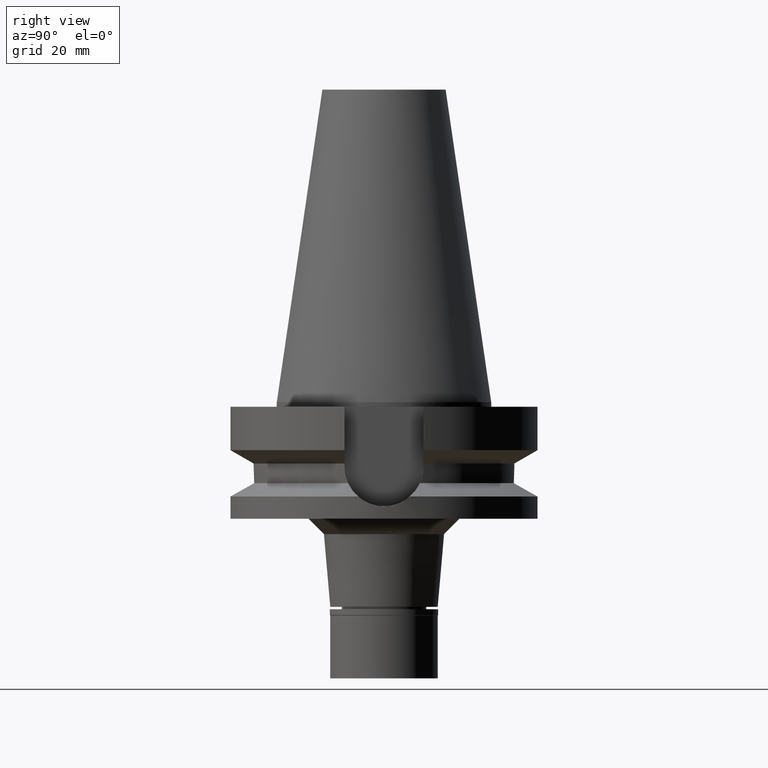
[diagram: clean part render]
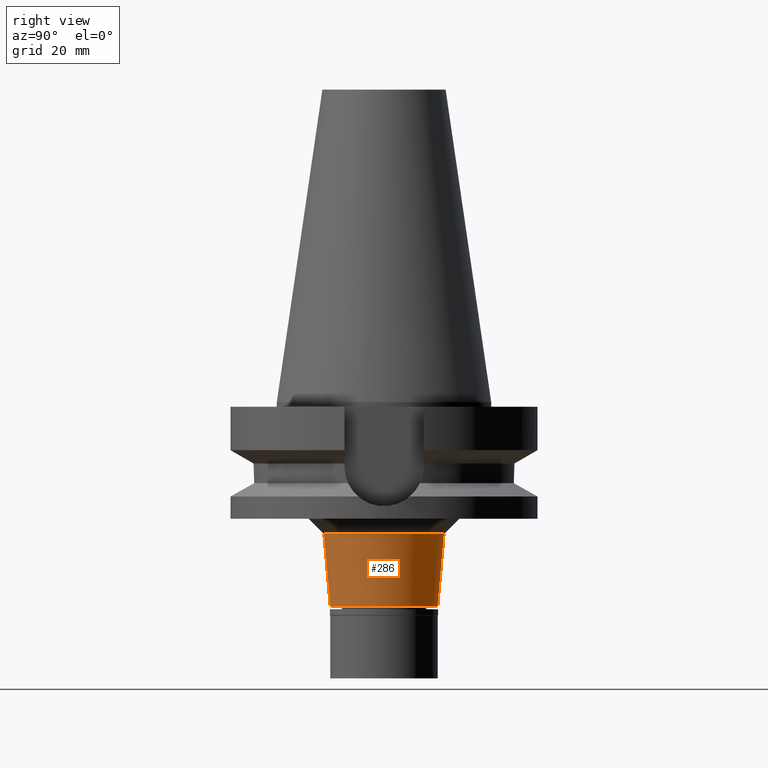
[diagram: same view with one face highlighted and labeled with its STEP entity id]
A machine part, right view. The second image highlights one B-rep face of the part: STEP entity #286.
In plain terms, the highlighted conical surface has half-angle 5 deg.
Its self-contained STEP definition (entity closure, byte-faithful):
#154 = AXIS2_PLACEMENT_3D ( 'NONE', #535, #2462, #1500 ) ;
#162 = AXIS2_PLACEMENT_3D ( 'NONE', #584, #1286, #1044 ) ;
#286 = ADVANCED_FACE ( 'NONE', ( #751 ), #1344, .T. ) ;
#309 = CIRCLE ( 'NONE', #162, 17.50000000000000000 ) ;
#364 = ORIENTED_EDGE ( 'NONE', *, *, #3040, .T. ) ;
#387 = CARTESIAN_POINT ( 'NONE',  ( 0.0000000000000000000, 19.57348132555999953, -43.00000000000000000 ) ) ;
#482 = LINE ( 'NONE', #1621, #2542 ) ;
#498 = DIRECTION ( 'NONE',  ( 0.0000000000000000000, 0.08715574274757587059, -0.9961946980917526506 ) ) ;
#515 = EDGE_CURVE ( 'NONE', #2129, #2021, #2766, .T. ) ;
#535 = CARTESIAN_POINT ( 'NONE',  ( 0.0000000000000000000, 0.0000000000000000000, -54.85000000000000142 ) ) ;
#584 = CARTESIAN_POINT ( 'NONE',  ( 0.0000000000000000000, 0.0000000000000000000, -66.69999999999998863 ) ) ;
#751 = FACE_OUTER_BOUND ( 'NONE', #2822, .T. ) ;
#771 = CARTESIAN_POINT ( 'NONE',  ( 0.0000000000000000000, 19.57348132555999953, -43.00000000000000000 ) ) ;
#1035 = CARTESIAN_POINT ( 'NONE',  ( 0.0000000000000000000, -19.57348132555999953, -43.00000000000000000 ) ) ;
#1044 = DIRECTION ( 'NONE',  ( 0.0000000000000000000, -1.000000000000000000, 0.0000000000000000000 ) ) ;
#1146 = DIRECTION ( 'NONE',  ( 0.0000000000000000000, 0.0000000000000000000, 1.000000000000000000 ) ) ;
#1277 = CARTESIAN_POINT ( 'NONE',  ( 0.0000000000000000000, 17.50000000000000000, -66.69999999999998863 ) ) ;
#1286 = DIRECTION ( 'NONE',  ( 0.0000000000000000000, 0.0000000000000000000, 1.000000000000000000 ) ) ;
#1319 = DIRECTION ( 'NONE',  ( 0.0000000000000000000, -0.08715574274757587059, -0.9961946980917526506 ) ) ;
#1344 = CONICAL_SURFACE ( 'NONE', #154, 18.53674066277999799, 0.08726646259969973729 ) ;
#1462 = CARTESIAN_POINT ( 'NONE',  ( 0.0000000000000000000, -17.50000000000000000, -66.69999999999998863 ) ) ;
#1500 = DIRECTION ( 'NONE',  ( 0.0000000000000000000, 1.000000000000000000, 0.0000000000000000000 ) ) ;
#1621 = CARTESIAN_POINT ( 'NONE',  ( 0.0000000000000000000, -19.57348132555999953, -43.00000000000000000 ) ) ;
#1936 = ORIENTED_EDGE ( 'NONE', *, *, #2430, .F. ) ;
#1950 = EDGE_CURVE ( 'NONE', #2026, #1997, #482, .T. ) ;
#1997 = VERTEX_POINT ( 'NONE', #1462 ) ;
#2003 = VECTOR ( 'NONE', #1319, 1000.000000000000227 ) ;
#2021 = VERTEX_POINT ( 'NONE', #1277 ) ;
#2026 = VERTEX_POINT ( 'NONE', #1035 ) ;
#2072 = AXIS2_PLACEMENT_3D ( 'NONE', #2874, #1146, #2815 ) ;
#2129 = VERTEX_POINT ( 'NONE', #771 ) ;
#2430 = EDGE_CURVE ( 'NONE', #2026, #2129, #3035, .T. ) ;
#2462 = DIRECTION ( 'NONE',  ( 0.0000000000000000000, 0.0000000000000000000, 1.000000000000000000 ) ) ;
#2542 = VECTOR ( 'NONE', #498, 1000.000000000000227 ) ;
#2763 = ORIENTED_EDGE ( 'NONE', *, *, #1950, .T. ) ;
#2766 = LINE ( 'NONE', #387, #2003 ) ;
#2767 = ORIENTED_EDGE ( 'NONE', *, *, #515, .F. ) ;
#2815 = DIRECTION ( 'NONE',  ( 0.0000000000000000000, -1.000000000000000000, 0.0000000000000000000 ) ) ;
#2822 = EDGE_LOOP ( 'NONE', ( #1936, #2763, #364, #2767 ) ) ;
#2874 = CARTESIAN_POINT ( 'NONE',  ( 0.0000000000000000000, 0.0000000000000000000, -43.00000000000000000 ) ) ;
#3035 = CIRCLE ( 'NONE', #2072, 19.57348132555999953 ) ;
#3040 = EDGE_CURVE ( 'NONE', #1997, #2021, #309, .T. ) ;